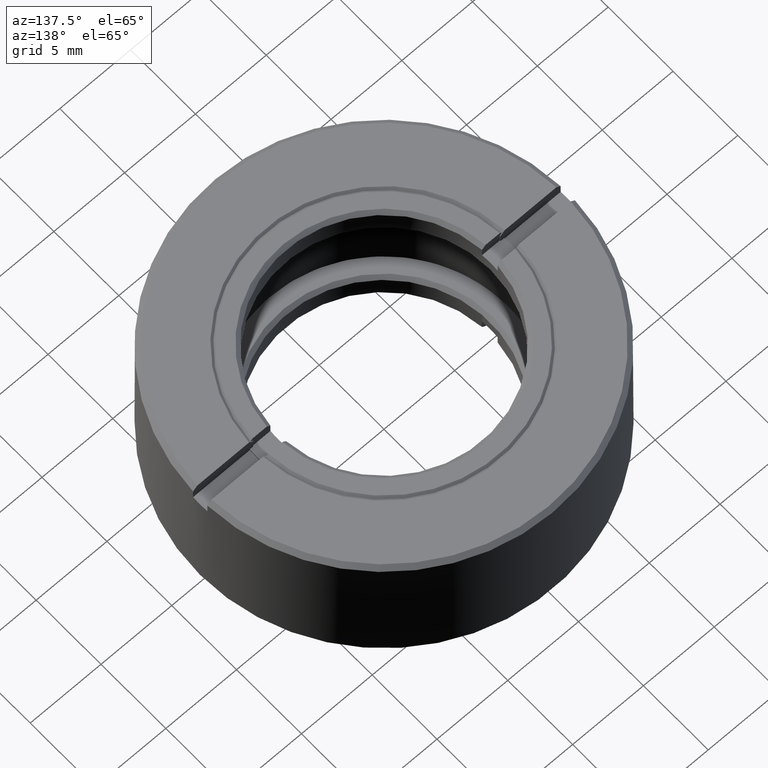
[diagram: clean part render]
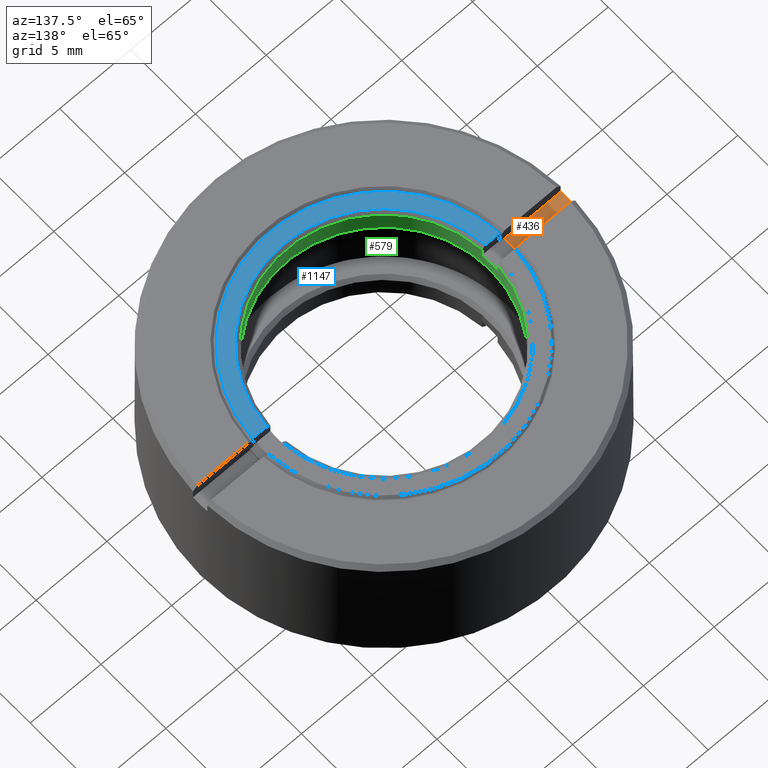
[diagram: same view with three faces highlighted in distinct colors, each labeled with its STEP entity id]
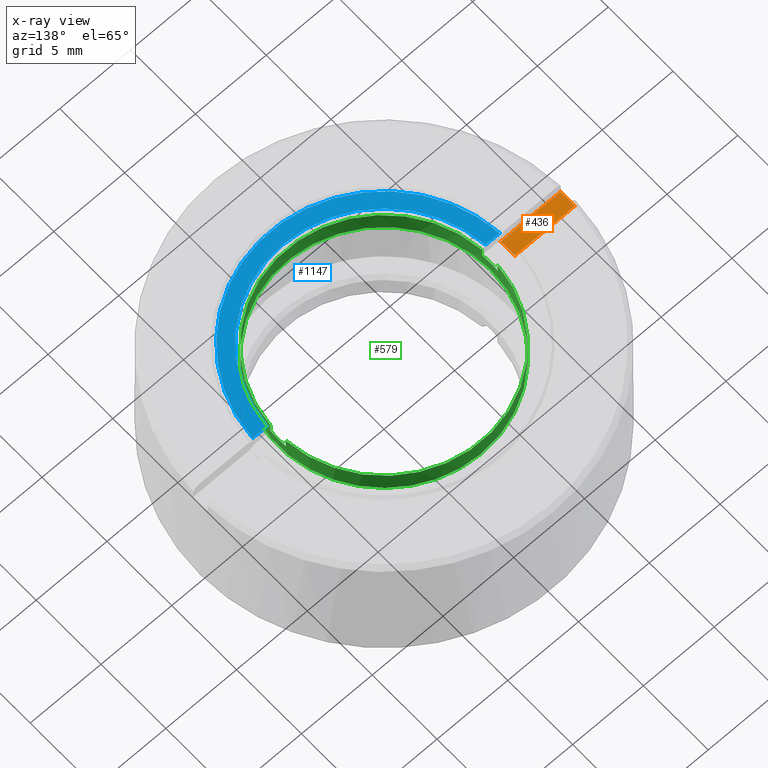
[diagram: x-ray of the same camera — body ghosted, the three highlighted faces saturated]
A machine part, auxiliary view with three faces highlighted in distinct colors.
The next image is the same camera in x-ray (body ghosted, the three faces saturated) — at least one of them is partly hidden behind the body in this view.
Their STEP definitions:

[orange] entity #436 — the highlighted planar face has unit normal (0, 0, 1).
#28 = CARTESIAN_POINT ( 'NONE',  ( -12.98836017363239037, 0.5500000000000000444, 4.000000000000000000 ) ) ;
#149 = PLANE ( 'NONE',  #1598 ) ;
#261 = EDGE_LOOP ( 'NONE', ( #1111, #1451, #1427, #749 ) ) ;
#407 = CARTESIAN_POINT ( 'NONE',  ( 0.000000000000000000, 0.000000000000000000, 4.000000000000000000 ) ) ;
#409 = CARTESIAN_POINT ( 'NONE',  ( 0.000000000000000000, 0.000000000000000000, 4.000000000000000888 ) ) ;
#436 = ADVANCED_FACE ( 'NONE', ( #653 ), #149, .T. ) ;
#451 = DIRECTION ( 'NONE',  ( -1.000000000000000000, 0.000000000000000000, 0.000000000000000000 ) ) ;
#461 = CARTESIAN_POINT ( 'NONE',  ( 0.000000000000000000, -0.5500000000000000444, 4.000000000000000000 ) ) ;
#511 = LINE ( 'NONE', #989, #978 ) ;
#516 = VERTEX_POINT ( 'NONE', #28 ) ;
#520 = DIRECTION ( 'NONE',  ( 1.000000000000000000, 0.000000000000000000, -0.000000000000000000 ) ) ;
#536 = VECTOR ( 'NONE', #520, 1000.000000000000000 ) ;
#541 = DIRECTION ( 'NONE',  ( 0.000000000000000000, 0.000000000000000000, 1.000000000000000000 ) ) ;
#556 = VERTEX_POINT ( 'NONE', #1079 ) ;
#601 = CARTESIAN_POINT ( 'NONE',  ( -12.98836017363239037, -0.5500000000000000444, 4.000000000000000000 ) ) ;
#626 = LINE ( 'NONE', #461, #536 ) ;
#643 = VERTEX_POINT ( 'NONE', #1436 ) ;
#653 = FACE_OUTER_BOUND ( 'NONE', #261, .T. ) ;
#716 = AXIS2_PLACEMENT_3D ( 'NONE', #920, #1200, #451 ) ;
#717 = CIRCLE ( 'NONE', #1029, 8.750000000000001776 ) ;
#749 = ORIENTED_EDGE ( 'NONE', *, *, #1582, .T. ) ;
#767 = CIRCLE ( 'NONE', #716, 13.00000000000000355 ) ;
#903 = DIRECTION ( 'NONE',  ( 0.000000000000000000, 0.000000000000000000, -1.000000000000000000 ) ) ;
#920 = CARTESIAN_POINT ( 'NONE',  ( 0.000000000000000000, 0.000000000000000000, 4.000000000000000000 ) ) ;
#978 = VECTOR ( 'NONE', #981, 1000.000000000000000 ) ;
#981 = DIRECTION ( 'NONE',  ( -1.000000000000000000, -0.000000000000000000, -0.000000000000000000 ) ) ;
#989 = CARTESIAN_POINT ( 'NONE',  ( -12.98836017363239037, 0.5500000000000000444, 4.000000000000000888 ) ) ;
#1021 = EDGE_CURVE ( 'NONE', #516, #1554, #767, .T. ) ;
#1029 = AXIS2_PLACEMENT_3D ( 'NONE', #409, #903, #1157 ) ;
#1079 = CARTESIAN_POINT ( 'NONE',  ( -8.732697177848320891, -0.5500000000000000444, 4.000000000000000000 ) ) ;
#1111 = ORIENTED_EDGE ( 'NONE', *, *, #1021, .T. ) ;
#1157 = DIRECTION ( 'NONE',  ( 1.000000000000000000, 1.065814103640150437E-14, 0.000000000000000000 ) ) ;
#1200 = DIRECTION ( 'NONE',  ( 0.000000000000000000, 0.000000000000000000, 1.000000000000000000 ) ) ;
#1274 = EDGE_CURVE ( 'NONE', #1554, #556, #626, .T. ) ;
#1279 = DIRECTION ( 'NONE',  ( 1.000000000000000000, 0.000000000000000000, -0.000000000000000000 ) ) ;
#1296 = EDGE_CURVE ( 'NONE', #556, #643, #717, .T. ) ;
#1427 = ORIENTED_EDGE ( 'NONE', *, *, #1296, .T. ) ;
#1436 = CARTESIAN_POINT ( 'NONE',  ( -8.732697177848320891, 0.5500000000000000444, 4.000000000000000888 ) ) ;
#1451 = ORIENTED_EDGE ( 'NONE', *, *, #1274, .T. ) ;
#1554 = VERTEX_POINT ( 'NONE', #601 ) ;
#1582 = EDGE_CURVE ( 'NONE', #643, #516, #511, .T. ) ;
#1598 = AXIS2_PLACEMENT_3D ( 'NONE', #407, #541, #1279 ) ;

[blue] entity #1147 — the highlighted planar face has unit normal (0, 0, 1).
#3 = CARTESIAN_POINT ( 'NONE',  ( 8.729404332484712370, -0.5999999999999998668, 4.999999999999833911 ) ) ;
#16 = CARTESIAN_POINT ( 'NONE',  ( 0.000000000000000000, 0.000000000000000000, 5.000000000000000000 ) ) ;
#23 = CARTESIAN_POINT ( 'NONE',  ( 0.000000000000000000, -0.5999999999999998668, 5.000000000000000000 ) ) ;
#35 = CARTESIAN_POINT ( 'NONE',  ( -8.729404332483662543, -0.5999999999999998668, 5.000000000000883738 ) ) ;
#80 = VERTEX_POINT ( 'NONE', #35 ) ;
#102 = DIRECTION ( 'NONE',  ( 0.000000000000000000, 0.000000000000000000, 1.000000000000000000 ) ) ;
#222 = CIRCLE ( 'NONE', #1316, 7.749999999999993783 ) ;
#316 = VERTEX_POINT ( 'NONE', #3 ) ;
#410 = ORIENTED_EDGE ( 'NONE', *, *, #862, .T. ) ;
#492 = EDGE_LOOP ( 'NONE', ( #889, #1150, #410, #976 ) ) ;
#515 = DIRECTION ( 'NONE',  ( 0.000000000000000000, 0.000000000000000000, -1.000000000000000000 ) ) ;
#610 = DIRECTION ( 'NONE',  ( 1.000000000000000000, 0.000000000000000000, -0.000000000000000000 ) ) ;
#634 = VERTEX_POINT ( 'NONE', #1334 ) ;
#664 = LINE ( 'NONE', #23, #872 ) ;
#714 = EDGE_CURVE ( 'NONE', #634, #1576, #222, .T. ) ;
#737 = CARTESIAN_POINT ( 'NONE',  ( 0.000000000000000000, 0.000000000000000000, 5.000000000000000000 ) ) ;
#766 = VECTOR ( 'NONE', #912, 1000.000000000000000 ) ;
#822 = EDGE_CURVE ( 'NONE', #316, #80, #1060, .T. ) ;
#845 = DIRECTION ( 'NONE',  ( -0.000000000000000000, -0.000000000000000000, -1.000000000000000000 ) ) ;
#862 = EDGE_CURVE ( 'NONE', #1576, #80, #888, .T. ) ;
#872 = VECTOR ( 'NONE', #1006, 1000.000000000000000 ) ;
#879 = CARTESIAN_POINT ( 'NONE',  ( 0.000000000000000000, 0.000000000000000000, 5.000000000000000000 ) ) ;
#888 = LINE ( 'NONE', #1034, #766 ) ;
#889 = ORIENTED_EDGE ( 'NONE', *, *, #1323, .T. ) ;
#912 = DIRECTION ( 'NONE',  ( -1.000000000000000000, -0.000000000000000000, 0.000000000000000000 ) ) ;
#976 = ORIENTED_EDGE ( 'NONE', *, *, #822, .F. ) ;
#1001 = AXIS2_PLACEMENT_3D ( 'NONE', #737, #102, #610 ) ;
#1006 = DIRECTION ( 'NONE',  ( -1.000000000000000000, -0.000000000000000000, 0.000000000000000000 ) ) ;
#1034 = CARTESIAN_POINT ( 'NONE',  ( 0.000000000000000000, -0.5999999999999998668, 5.000000000000000000 ) ) ;
#1060 = CIRCLE ( 'NONE', #1165, 8.749999999999998224 ) ;
#1147 = ADVANCED_FACE ( 'NONE', ( #1603 ), #1332, .T. ) ;
#1150 = ORIENTED_EDGE ( 'NONE', *, *, #714, .T. ) ;
#1151 = DIRECTION ( 'NONE',  ( -1.000000000000000000, 0.000000000000000000, 0.000000000000000000 ) ) ;
#1165 = AXIS2_PLACEMENT_3D ( 'NONE', #16, #515, #1151 ) ;
#1316 = AXIS2_PLACEMENT_3D ( 'NONE', #879, #845, #1344 ) ;
#1323 = EDGE_CURVE ( 'NONE', #316, #634, #664, .T. ) ;
#1332 = PLANE ( 'NONE',  #1001 ) ;
#1334 = CARTESIAN_POINT ( 'NONE',  ( 7.726739286400781559, -0.5999999999999998668, 5.000000000000603961 ) ) ;
#1344 = DIRECTION ( 'NONE',  ( 1.000000000000000000, 0.000000000000000000, 0.000000000000000000 ) ) ;
#1372 = CARTESIAN_POINT ( 'NONE',  ( -7.726739286399944895, -0.5999999999999998668, 4.999999999999769074 ) ) ;
#1576 = VERTEX_POINT ( 'NONE', #1372 ) ;
#1603 = FACE_OUTER_BOUND ( 'NONE', #492, .T. ) ;

[green] entity #579 — the highlighted cylindrical surface (bore or boss wall) has radius 7.5 mm, axis along (0, 0, 1).
#12 = AXIS2_PLACEMENT_3D ( 'NONE', #1579, #957, #1321 ) ;
#45 = CARTESIAN_POINT ( 'NONE',  ( 0.000000000000000000, 0.000000000000000000, 4.750000000000004441 ) ) ;
#48 = EDGE_CURVE ( 'NONE', #1350, #365, #476, .T. ) ;
#56 = LINE ( 'NONE', #699, #564 ) ;
#92 = CARTESIAN_POINT ( 'NONE',  ( 0.000000000000000000, 0.000000000000000000, 4.099999999999999645 ) ) ;
#112 = CARTESIAN_POINT ( 'NONE',  ( -7.475961476629322533, 0.6000000000000000888, 4.100000000000000533 ) ) ;
#126 = CARTESIAN_POINT ( 'NONE',  ( -7.475961476627793978, 0.6000000000000000888, 4.099999999999999645 ) ) ;
#127 = EDGE_CURVE ( 'NONE', #1350, #1375, #1197, .T. ) ;
#139 = EDGE_CURVE ( 'NONE', #619, #1375, #1081, .T. ) ;
#141 = LINE ( 'NONE', #112, #560 ) ;
#259 = CARTESIAN_POINT ( 'NONE',  ( 7.475961476627794866, -0.5999999999999998668, 4.750000000001527667 ) ) ;
#282 = ORIENTED_EDGE ( 'NONE', *, *, #1600, .F. ) ;
#295 = EDGE_CURVE ( 'NONE', #1408, #1272, #141, .T. ) ;
#320 = ORIENTED_EDGE ( 'NONE', *, *, #48, .F. ) ;
#328 = CARTESIAN_POINT ( 'NONE',  ( 0.000000000000000000, 0.000000000000000000, 3.250000000000000444 ) ) ;
#340 = ORIENTED_EDGE ( 'NONE', *, *, #983, .T. ) ;
#347 = EDGE_LOOP ( 'NONE', ( #1583 ) ) ;
#358 = ORIENTED_EDGE ( 'NONE', *, *, #755, .F. ) ;
#365 = VERTEX_POINT ( 'NONE', #1359 ) ;
#401 = CIRCLE ( 'NONE', #1394, 7.500000000000000000 ) ;
#448 = DIRECTION ( 'NONE',  ( 1.000000000000000000, 0.000000000000000000, 0.000000000000000000 ) ) ;
#476 = CIRCLE ( 'NONE', #660, 7.500000000000000000 ) ;
#503 = DIRECTION ( 'NONE',  ( 1.000000000000000000, 0.000000000000000000, 0.000000000000000000 ) ) ;
#508 = CIRCLE ( 'NONE', #688, 7.500000000000000000 ) ;
#550 = EDGE_CURVE ( 'NONE', #1234, #1234, #508, .T. ) ;
#558 = DIRECTION ( 'NONE',  ( -0.000000000000000000, -0.000000000000000000, -1.000000000000000000 ) ) ;
#560 = VECTOR ( 'NONE', #980, 1000.000000000000000 ) ;
#564 = VECTOR ( 'NONE', #1450, 1000.000000000000000 ) ;
#579 = ADVANCED_FACE ( 'NONE', ( #1568, #1088 ), #1452, .F. ) ;
#618 = DIRECTION ( 'NONE',  ( -0.000000000000000000, -0.000000000000000000, -1.000000000000000000 ) ) ;
#619 = VERTEX_POINT ( 'NONE', #962 ) ;
#650 = VERTEX_POINT ( 'NONE', #933 ) ;
#660 = AXIS2_PLACEMENT_3D ( 'NONE', #45, #558, #1497 ) ;
#676 = CARTESIAN_POINT ( 'NONE',  ( 7.475961476629322533, 0.6000000000000000888, 4.100000000000000533 ) ) ;
#683 = ORIENTED_EDGE ( 'NONE', *, *, #139, .F. ) ;
#688 = AXIS2_PLACEMENT_3D ( 'NONE', #328, #1208, #1328 ) ;
#699 = CARTESIAN_POINT ( 'NONE',  ( -7.475961476629322533, -0.5999999999999998668, 4.100000000000000533 ) ) ;
#702 = DIRECTION ( 'NONE',  ( -0.000000000000000000, -0.000000000000000000, -1.000000000000000000 ) ) ;
#708 = CARTESIAN_POINT ( 'NONE',  ( 7.475961476629322533, -0.5999999999999998668, 4.100000000000000533 ) ) ;
#735 = CARTESIAN_POINT ( 'NONE',  ( 0.000000000000000000, 0.000000000000000000, 4.099999999999999645 ) ) ;
#755 = EDGE_CURVE ( 'NONE', #1408, #650, #846, .T. ) ;
#769 = CARTESIAN_POINT ( 'NONE',  ( -7.475961476627793978, 0.6000000000000000888, 4.750000000001527667 ) ) ;
#816 = DIRECTION ( 'NONE',  ( 0.000000000000000000, -0.000000000000000000, 1.000000000000000000 ) ) ;
#846 = CIRCLE ( 'NONE', #870, 7.500000000000000000 ) ;
#866 = VECTOR ( 'NONE', #1203, 1000.000000000000000 ) ;
#870 = AXIS2_PLACEMENT_3D ( 'NONE', #1102, #1240, #503 ) ;
#931 = LINE ( 'NONE', #676, #1471 ) ;
#933 = CARTESIAN_POINT ( 'NONE',  ( 7.475961476628369518, 0.6000000000000000888, 4.750000000000577316 ) ) ;
#957 = DIRECTION ( 'NONE',  ( 0.000000000000000000, 0.000000000000000000, 1.000000000000000000 ) ) ;
#962 = CARTESIAN_POINT ( 'NONE',  ( 7.475961476627793978, 0.6000000000000000888, 4.099999999999999645 ) ) ;
#971 = CARTESIAN_POINT ( 'NONE',  ( -7.500000000000000000, 0.000000000000000000, 3.250000000000000444 ) ) ;
#980 = DIRECTION ( 'NONE',  ( -0.000000000000000000, 0.000000000000000000, -1.000000000000000000 ) ) ;
#983 = EDGE_CURVE ( 'NONE', #619, #650, #931, .T. ) ;
#1012 = EDGE_CURVE ( 'NONE', #1219, #365, #56, .T. ) ;
#1065 = EDGE_LOOP ( 'NONE', ( #683, #340, #358, #1221, #282, #1464, #320, #1605 ) ) ;
#1081 = CIRCLE ( 'NONE', #1287, 7.500000000000000000 ) ;
#1088 = FACE_OUTER_BOUND ( 'NONE', #347, .T. ) ;
#1102 = CARTESIAN_POINT ( 'NONE',  ( 0.000000000000000000, 0.000000000000000000, 4.750000000000004441 ) ) ;
#1119 = CARTESIAN_POINT ( 'NONE',  ( -7.475961476627794866, -0.5999999999999998668, 4.099999999999999645 ) ) ;
#1131 = DIRECTION ( 'NONE',  ( 1.000000000000000000, 8.881784197001252323E-15, 0.000000000000000000 ) ) ;
#1197 = LINE ( 'NONE', #708, #866 ) ;
#1203 = DIRECTION ( 'NONE',  ( 0.000000000000000000, -0.000000000000000000, -1.000000000000000000 ) ) ;
#1208 = DIRECTION ( 'NONE',  ( -0.000000000000000000, -0.000000000000000000, -1.000000000000000000 ) ) ;
#1219 = VERTEX_POINT ( 'NONE', #1119 ) ;
#1221 = ORIENTED_EDGE ( 'NONE', *, *, #295, .T. ) ;
#1234 = VERTEX_POINT ( 'NONE', #971 ) ;
#1240 = DIRECTION ( 'NONE',  ( -0.000000000000000000, -0.000000000000000000, -1.000000000000000000 ) ) ;
#1272 = VERTEX_POINT ( 'NONE', #126 ) ;
#1287 = AXIS2_PLACEMENT_3D ( 'NONE', #92, #702, #448 ) ;
#1321 = DIRECTION ( 'NONE',  ( 1.000000000000000000, 0.000000000000000000, 0.000000000000000000 ) ) ;
#1328 = DIRECTION ( 'NONE',  ( -1.000000000000000000, 0.000000000000000000, 0.000000000000000000 ) ) ;
#1350 = VERTEX_POINT ( 'NONE', #259 ) ;
#1359 = CARTESIAN_POINT ( 'NONE',  ( -7.475961476628370406, -0.5999999999999998668, 4.750000000000577316 ) ) ;
#1375 = VERTEX_POINT ( 'NONE', #1518 ) ;
#1394 = AXIS2_PLACEMENT_3D ( 'NONE', #735, #618, #1131 ) ;
#1408 = VERTEX_POINT ( 'NONE', #769 ) ;
#1450 = DIRECTION ( 'NONE',  ( -0.000000000000000000, 0.000000000000000000, 1.000000000000000000 ) ) ;
#1452 = CYLINDRICAL_SURFACE ( 'NONE', #12, 7.500000000000000000 ) ;
#1464 = ORIENTED_EDGE ( 'NONE', *, *, #1012, .T. ) ;
#1471 = VECTOR ( 'NONE', #816, 1000.000000000000000 ) ;
#1497 = DIRECTION ( 'NONE',  ( 1.000000000000000000, 0.000000000000000000, 0.000000000000000000 ) ) ;
#1518 = CARTESIAN_POINT ( 'NONE',  ( 7.475961476627794866, -0.5999999999999998668, 4.099999999999999645 ) ) ;
#1568 = FACE_OUTER_BOUND ( 'NONE', #1065, .T. ) ;
#1579 = CARTESIAN_POINT ( 'NONE',  ( 0.000000000000000000, 0.000000000000000000, 3.000000000000000000 ) ) ;
#1583 = ORIENTED_EDGE ( 'NONE', *, *, #550, .T. ) ;
#1600 = EDGE_CURVE ( 'NONE', #1219, #1272, #401, .T. ) ;
#1605 = ORIENTED_EDGE ( 'NONE', *, *, #127, .T. ) ;